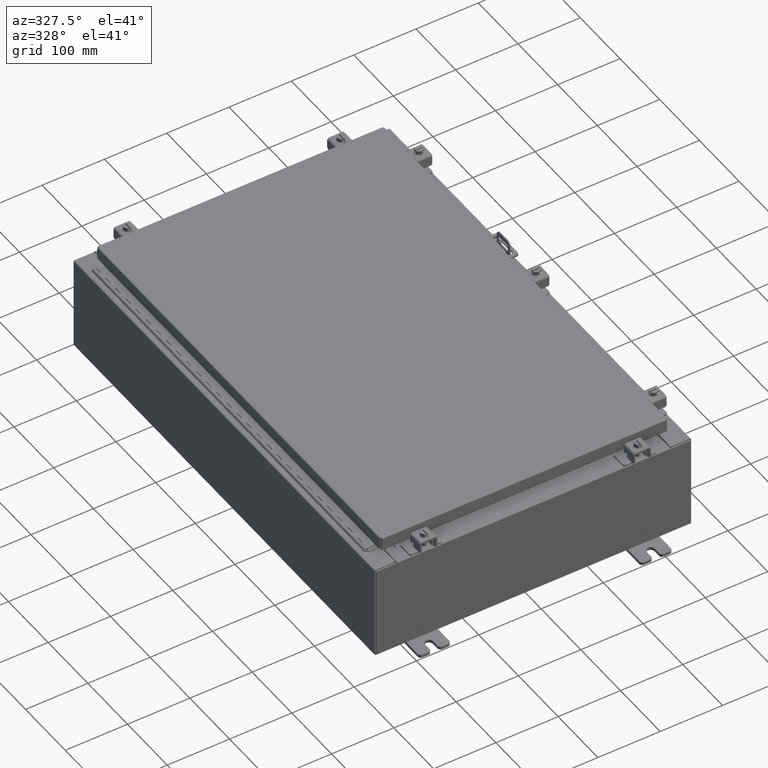
[diagram: clean part render]
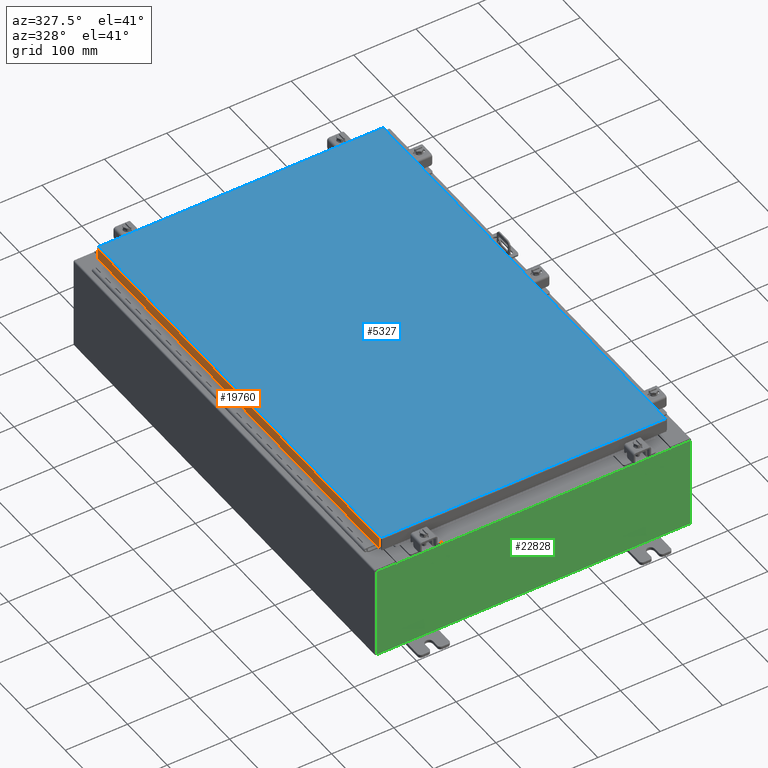
[diagram: same view with three faces highlighted in distinct colors, each labeled with its STEP entity id]
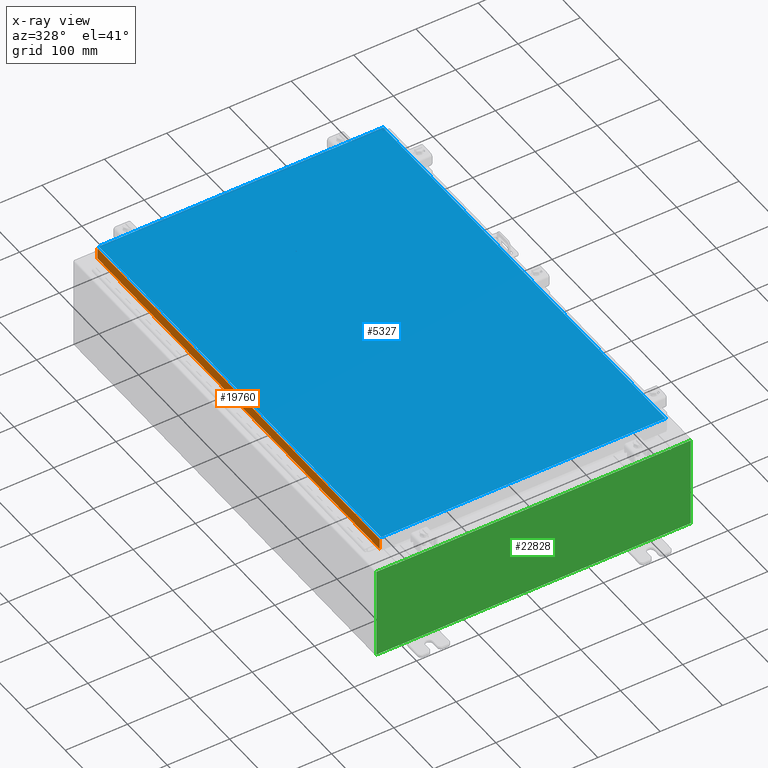
[diagram: x-ray of the same camera — body ghosted, the three highlighted faces saturated]
A machine part, auxiliary view with three faces highlighted in distinct colors.
The next image is the same camera in x-ray (body ghosted, the three faces saturated) — at least one of them is partly hidden behind the body in this view.
Their STEP definitions:

[orange] entity #19760 — the highlighted planar face has unit normal (1, 0, -0).
#527 = ORIENTED_EDGE ( 'NONE', *, *, #19827, .F. ) ;
#1669 = CARTESIAN_POINT ( 'NONE',  ( -9.077999999999997600, -14.09399999999999600, -0.08770000000000004200 ) ) ;
#2088 = CARTESIAN_POINT ( 'NONE',  ( -9.077999999999997600, -14.00515786437626500, -0.07469999999999976700 ) ) ;
#2225 = CARTESIAN_POINT ( 'NONE',  ( -9.077999999999999400, -14.00515786437626200, -0.7949999999999996000 ) ) ;
#2512 = ORIENTED_EDGE ( 'NONE', *, *, #2642, .F. ) ;
#2585 = EDGE_CURVE ( 'NONE', #25218, #14120, #32703, .T. ) ;
#2642 = EDGE_CURVE ( 'NONE', #13750, #14120, #8410, .T. ) ;
#3983 = DIRECTION ( 'NONE',  ( 1.000000000000000000, 3.675660434206576600E-031, -3.034122441942816500E-015 ) ) ;
#4586 = LINE ( 'NONE', #2088, #34834 ) ;
#7507 = VECTOR ( 'NONE', #25178, 39.37007874015748100 ) ;
#7616 = CARTESIAN_POINT ( 'NONE',  ( -9.077999999999999400, -14.09399999999999600, -0.7949999999999997100 ) ) ;
#7773 = VERTEX_POINT ( 'NONE', #8099 ) ;
#7903 = LINE ( 'NONE', #1669, #14809 ) ;
#8099 = CARTESIAN_POINT ( 'NONE',  ( -9.077999999999997600, -14.00515786437626400, -0.08770000000000007000 ) ) ;
#8410 = LINE ( 'NONE', #7616, #7507 ) ;
#9323 = VECTOR ( 'NONE', #19186, 39.37007874015748100 ) ;
#10448 = DIRECTION ( 'NONE',  ( 3.675660434206577100E-031, -1.000000000000000000, -1.083515668565077200E-045 ) ) ;
#13750 = VERTEX_POINT ( 'NONE', #2225 ) ;
#14120 = VERTEX_POINT ( 'NONE', #36398 ) ;
#14809 = VECTOR ( 'NONE', #10448, 39.37007874015748100 ) ;
#16621 = EDGE_LOOP ( 'NONE', ( #527, #21919, #2512, #25844 ) ) ;
#17557 = FACE_OUTER_BOUND ( 'NONE', #16621, .T. ) ;
#19051 = CARTESIAN_POINT ( 'NONE',  ( -9.077999999999997600, 14.00515786437626900, 1.256020718460122500E-013 ) ) ;
#19186 = DIRECTION ( 'NONE',  ( -3.034122441942816500E-015, 6.982962677686265900E-015, -1.000000000000000000 ) ) ;
#19760 = ADVANCED_FACE ( 'NONE', ( #17557 ), #27241, .F. ) ;
#19827 = EDGE_CURVE ( 'NONE', #25218, #7773, #7903, .T. ) ;
#21533 = CARTESIAN_POINT ( 'NONE',  ( -9.077999999999997600, -3.336764542172729700E-030, 2.780457718396846400E-014 ) ) ;
#21542 = EDGE_CURVE ( 'NONE', #7773, #13750, #4586, .T. ) ;
#21919 = ORIENTED_EDGE ( 'NONE', *, *, #2585, .T. ) ;
#24473 = DIRECTION ( 'NONE',  ( -3.034122441942816500E-015, 0.0000000000000000000, -1.000000000000000000 ) ) ;
#25178 = DIRECTION ( 'NONE',  ( -4.379057701015054300E-047, 1.000000000000000000, 1.211441035930299800E-016 ) ) ;
#25218 = VERTEX_POINT ( 'NONE', #27128 ) ;
#25507 = DIRECTION ( 'NONE',  ( -3.034122441942816500E-015, 6.982962677686265900E-015, -1.000000000000000000 ) ) ;
#25844 = ORIENTED_EDGE ( 'NONE', *, *, #21542, .F. ) ;
#27128 = CARTESIAN_POINT ( 'NONE',  ( -9.077999999999997600, 14.00515786437626900, -0.08770000000000004200 ) ) ;
#27241 = PLANE ( 'NONE',  #34880 ) ;
#32703 = LINE ( 'NONE', #19051, #9323 ) ;
#34834 = VECTOR ( 'NONE', #25507, 39.37007874015748100 ) ;
#34880 = AXIS2_PLACEMENT_3D ( 'NONE', #21533, #3983, #24473 ) ;
#36398 = CARTESIAN_POINT ( 'NONE',  ( -9.077999999999999400, 14.00515786437627400, -0.7949999999999962700 ) ) ;

[blue] entity #5327 — the highlighted planar face has unit normal (0, 0, -1).
#746 = CARTESIAN_POINT ( 'NONE',  ( 0.0000000000000000000, 0.0000000000000000000, 0.0000000000000000000 ) ) ;
#872 = DIRECTION ( 'NONE',  ( 0.0000000000000000000, 0.0000000000000000000, -1.000000000000000000 ) ) ;
#1370 = VERTEX_POINT ( 'NONE', #28244 ) ;
#1829 = VERTEX_POINT ( 'NONE', #24437 ) ;
#2515 = EDGE_CURVE ( 'NONE', #1829, #4608, #20843, .T. ) ;
#4042 = VECTOR ( 'NONE', #30584, 39.37007874015748100 ) ;
#4205 = CARTESIAN_POINT ( 'NONE',  ( -8.990299999999997700, 14.00630000000000100, -2.048885995248197400E-016 ) ) ;
#4320 = VECTOR ( 'NONE', #27601, 39.37007874015748100 ) ;
#4608 = VERTEX_POINT ( 'NONE', #31509 ) ;
#5261 = EDGE_LOOP ( 'NONE', ( #23750, #16011, #24823, #6941 ) ) ;
#5327 = ADVANCED_FACE ( 'NONE', ( #27726 ), #21231, .F. ) ;
#6627 = DIRECTION ( 'NONE',  ( 0.0000000000000000000, 1.000000000000000000, 0.0000000000000000000 ) ) ;
#6941 = ORIENTED_EDGE ( 'NONE', *, *, #2515, .T. ) ;
#8367 = VECTOR ( 'NONE', #12045, 39.37007874015748100 ) ;
#9841 = CARTESIAN_POINT ( 'NONE',  ( 8.990300000000001300, 14.00629999999999800, -2.048885995248197400E-016 ) ) ;
#12045 = DIRECTION ( 'NONE',  ( 1.000000000000000000, -0.0000000000000000000, -0.0000000000000000000 ) ) ;
#15307 = AXIS2_PLACEMENT_3D ( 'NONE', #746, #872, #21348 ) ;
#15338 = CARTESIAN_POINT ( 'NONE',  ( 8.990300000000001300, -14.00629999999999800, -7.512581982576723400E-016 ) ) ;
#16011 = ORIENTED_EDGE ( 'NONE', *, *, #29845, .T. ) ;
#16190 = EDGE_CURVE ( 'NONE', #1370, #1829, #25560, .T. ) ;
#18473 = VERTEX_POINT ( 'NONE', #15338 ) ;
#20843 = LINE ( 'NONE', #4205, #4320 ) ;
#21231 = PLANE ( 'NONE',  #15307 ) ;
#21348 = DIRECTION ( 'NONE',  ( -1.000000000000000000, 0.0000000000000000000, -0.0000000000000000000 ) ) ;
#23750 = ORIENTED_EDGE ( 'NONE', *, *, #37694, .T. ) ;
#23985 = LINE ( 'NONE', #32532, #8367 ) ;
#24437 = CARTESIAN_POINT ( 'NONE',  ( -8.990299999999997700, 14.00630000000000100, -2.048885995248197400E-016 ) ) ;
#24823 = ORIENTED_EDGE ( 'NONE', *, *, #16190, .T. ) ;
#25560 = LINE ( 'NONE', #9841, #4042 ) ;
#27601 = DIRECTION ( 'NONE',  ( 0.0000000000000000000, -1.000000000000000000, 0.0000000000000000000 ) ) ;
#27726 = FACE_OUTER_BOUND ( 'NONE', #5261, .T. ) ;
#28244 = CARTESIAN_POINT ( 'NONE',  ( 8.990300000000001300, 14.00629999999999800, -2.048885995248197400E-016 ) ) ;
#28752 = VECTOR ( 'NONE', #6627, 39.37007874015748100 ) ;
#29845 = EDGE_CURVE ( 'NONE', #18473, #1370, #37513, .T. ) ;
#30584 = DIRECTION ( 'NONE',  ( -1.000000000000000000, -0.0000000000000000000, -0.0000000000000000000 ) ) ;
#31509 = CARTESIAN_POINT ( 'NONE',  ( -8.990299999999997700, -14.00629999999999800, 1.980589795406590900E-015 ) ) ;
#32532 = CARTESIAN_POINT ( 'NONE',  ( -8.990299999999996000, -14.00629999999999800, 1.963515745446189200E-015 ) ) ;
#32860 = CARTESIAN_POINT ( 'NONE',  ( 8.990300000000001300, -14.00629999999999800, -7.512581982576723400E-016 ) ) ;
#37513 = LINE ( 'NONE', #32860, #28752 ) ;
#37694 = EDGE_CURVE ( 'NONE', #4608, #18473, #23985, .T. ) ;

[green] entity #22828 — the highlighted planar face has unit normal (-0, 1, -0).
#250 = CARTESIAN_POINT ( 'NONE',  ( 9.925300000000000000, 0.0000000000000000000, 2.925300000000000500 ) ) ;
#287 = LINE ( 'NONE', #5457, #30472 ) ;
#508 = VERTEX_POINT ( 'NONE', #18535 ) ;
#758 = ORIENTED_EDGE ( 'NONE', *, *, #11810, .T. ) ;
#759 = ORIENTED_EDGE ( 'NONE', *, *, #8971, .T. ) ;
#767 = ORIENTED_EDGE ( 'NONE', *, *, #13139, .F. ) ;
#982 = VERTEX_POINT ( 'NONE', #29460 ) ;
#1611 = VECTOR ( 'NONE', #2074, 39.37007874015748100 ) ;
#2003 = CARTESIAN_POINT ( 'NONE',  ( 0.0000000000000000000, 0.0000000000000000000, 0.0000000000000000000 ) ) ;
#2074 = DIRECTION ( 'NONE',  ( 1.000000000000000000, 0.0000000000000000000, 0.0000000000000000000 ) ) ;
#2198 = ORIENTED_EDGE ( 'NONE', *, *, #13078, .F. ) ;
#2418 = CARTESIAN_POINT ( 'NONE',  ( 8.655875000000000000, 0.0000000000000000000, 2.874950000000000600 ) ) ;
#2620 = DIRECTION ( 'NONE',  ( 0.0000000000000000000, 0.0000000000000000000, 1.000000000000000000 ) ) ;
#2727 = VECTOR ( 'NONE', #2620, 39.37007874015748100 ) ;
#3067 = VERTEX_POINT ( 'NONE', #3793 ) ;
#3416 = EDGE_CURVE ( 'NONE', #28895, #508, #32936, .T. ) ;
#3793 = CARTESIAN_POINT ( 'NONE',  ( -9.925300000000000000, 0.0000000000000000000, -2.925299999999999600 ) ) ;
#4828 = CARTESIAN_POINT ( 'NONE',  ( 8.637200000000000000, 0.0000000000000000000, 2.912300000000000600 ) ) ;
#4930 = PLANE ( 'NONE',  #10031 ) ;
#5323 = DIRECTION ( 'NONE',  ( 0.0000000000000000000, 0.0000000000000000000, -1.000000000000000000 ) ) ;
#5457 = CARTESIAN_POINT ( 'NONE',  ( -8.637199999999996400, -0.0000000000000000000, 0.0000000000000000000 ) ) ;
#5923 = VERTEX_POINT ( 'NONE', #24006 ) ;
#6334 = CARTESIAN_POINT ( 'NONE',  ( -8.637199999999996400, -0.0000000000000000000, 2.874950000000000600 ) ) ;
#6376 = CARTESIAN_POINT ( 'NONE',  ( 8.674550000000001800, 0.0000000000000000000, 2.925300000000000500 ) ) ;
#7005 = LINE ( 'NONE', #31178, #13870 ) ;
#7864 = DIRECTION ( 'NONE',  ( 0.0000000000000000000, -0.0000000000000000000, -1.000000000000000000 ) ) ;
#8932 = LINE ( 'NONE', #14497, #9834 ) ;
#8971 = EDGE_CURVE ( 'NONE', #28895, #17435, #16119, .T. ) ;
#8983 = VECTOR ( 'NONE', #20738, 39.37007874015748100 ) ;
#9654 = ORIENTED_EDGE ( 'NONE', *, *, #24963, .F. ) ;
#9834 = VECTOR ( 'NONE', #32023, 39.37007874015748100 ) ;
#9990 = EDGE_LOOP ( 'NONE', ( #36661, #9654, #35636, #758, #2198, #767, #29852, #759, #18352, #25515, #16914, #19839 ) ) ;
#10031 = AXIS2_PLACEMENT_3D ( 'NONE', #2003, #16600, #7864 ) ;
#10091 = EDGE_CURVE ( 'NONE', #27007, #3067, #25939, .T. ) ;
#11167 = CIRCLE ( 'NONE', #30956, 0.01867500000000003900 ) ;
#11504 = CARTESIAN_POINT ( 'NONE',  ( -8.655874999999996400, 0.0000000000000000000, 2.874950000000000600 ) ) ;
#11627 = CARTESIAN_POINT ( 'NONE',  ( 8.674549999999813500, -0.0000000000000000000, -5.647877341832707700E-013 ) ) ;
#11810 = EDGE_CURVE ( 'NONE', #19520, #16982, #17172, .T. ) ;
#12816 = EDGE_CURVE ( 'NONE', #32040, #982, #23081, .T. ) ;
#12955 = CIRCLE ( 'NONE', #29007, 0.01867500000000003900 ) ;
#13078 = EDGE_CURVE ( 'NONE', #5923, #16982, #7005, .T. ) ;
#13139 = EDGE_CURVE ( 'NONE', #508, #5923, #12955, .T. ) ;
#13870 = VECTOR ( 'NONE', #36988, 39.37007874015748100 ) ;
#14473 = DIRECTION ( 'NONE',  ( 0.0000000000000000000, 0.0000000000000000000, -1.000000000000000000 ) ) ;
#14497 = CARTESIAN_POINT ( 'NONE',  ( -9.925300000000000000, 0.0000000000000000000, 2.925300000000000500 ) ) ;
#15288 = VECTOR ( 'NONE', #36104, 39.37007874015748100 ) ;
#15942 = FACE_OUTER_BOUND ( 'NONE', #9990, .T. ) ;
#16119 = LINE ( 'NONE', #27389, #30741 ) ;
#16600 = DIRECTION ( 'NONE',  ( 0.0000000000000000000, -1.000000000000000000, 0.0000000000000000000 ) ) ;
#16793 = LINE ( 'NONE', #250, #8983 ) ;
#16847 = VERTEX_POINT ( 'NONE', #36485 ) ;
#16914 = ORIENTED_EDGE ( 'NONE', *, *, #36440, .T. ) ;
#16980 = CARTESIAN_POINT ( 'NONE',  ( -9.925300000000000000, 0.0000000000000000000, 2.925300000000000500 ) ) ;
#16982 = VERTEX_POINT ( 'NONE', #4828 ) ;
#17162 = EDGE_CURVE ( 'NONE', #19520, #30392, #287, .T. ) ;
#17172 = LINE ( 'NONE', #28269, #1611 ) ;
#17191 = CARTESIAN_POINT ( 'NONE',  ( -8.674549999999996400, -0.0000000000000000000, 0.0000000000000000000 ) ) ;
#17435 = VERTEX_POINT ( 'NONE', #21833 ) ;
#17681 = DIRECTION ( 'NONE',  ( -1.000000000000000000, -0.0000000000000000000, -0.0000000000000000000 ) ) ;
#18308 = LINE ( 'NONE', #17191, #2727 ) ;
#18352 = ORIENTED_EDGE ( 'NONE', *, *, #23824, .T. ) ;
#18535 = CARTESIAN_POINT ( 'NONE',  ( 8.674550000000000000, 0.0000000000000000000, 2.874950000000000600 ) ) ;
#19520 = VERTEX_POINT ( 'NONE', #31612 ) ;
#19839 = ORIENTED_EDGE ( 'NONE', *, *, #12816, .T. ) ;
#20450 = DIRECTION ( 'NONE',  ( 0.0000000000000000000, 0.0000000000000000000, -1.000000000000000000 ) ) ;
#20738 = DIRECTION ( 'NONE',  ( 0.0000000000000000000, 0.0000000000000000000, -1.000000000000000000 ) ) ;
#21380 = CARTESIAN_POINT ( 'NONE',  ( -9.925300000000000000, 0.0000000000000000000, 2.925300000000000500 ) ) ;
#21833 = CARTESIAN_POINT ( 'NONE',  ( 9.925300000000000000, 0.0000000000000000000, 2.925300000000000500 ) ) ;
#22828 = ADVANCED_FACE ( 'NONE', ( #15942 ), #4930, .F. ) ;
#22889 = DIRECTION ( 'NONE',  ( -0.0000000000000000000, 1.000000000000000000, -0.0000000000000000000 ) ) ;
#23081 = LINE ( 'NONE', #21380, #15288 ) ;
#23824 = EDGE_CURVE ( 'NONE', #17435, #27007, #16793, .T. ) ;
#24006 = CARTESIAN_POINT ( 'NONE',  ( 8.637200000000000000, 0.0000000000000000000, 2.874950000000000600 ) ) ;
#24963 = EDGE_CURVE ( 'NONE', #30392, #16847, #11167, .T. ) ;
#25515 = ORIENTED_EDGE ( 'NONE', *, *, #10091, .T. ) ;
#25833 = CARTESIAN_POINT ( 'NONE',  ( 9.925300000000000000, 0.0000000000000000000, -2.925299999999999600 ) ) ;
#25939 = LINE ( 'NONE', #35246, #35607 ) ;
#26079 = VECTOR ( 'NONE', #32141, 39.37007874015748100 ) ;
#27007 = VERTEX_POINT ( 'NONE', #25833 ) ;
#27389 = CARTESIAN_POINT ( 'NONE',  ( -9.925300000000000000, 0.0000000000000000000, 2.925300000000000500 ) ) ;
#28269 = CARTESIAN_POINT ( 'NONE',  ( -8.637200000000000000, 1.024442997624098700E-016, 2.912300000000000600 ) ) ;
#28895 = VERTEX_POINT ( 'NONE', #6376 ) ;
#29007 = AXIS2_PLACEMENT_3D ( 'NONE', #2418, #22889, #5323 ) ;
#29460 = CARTESIAN_POINT ( 'NONE',  ( -8.674549999999996400, 0.0000000000000000000, 2.925300000000000500 ) ) ;
#29852 = ORIENTED_EDGE ( 'NONE', *, *, #3416, .F. ) ;
#30392 = VERTEX_POINT ( 'NONE', #6334 ) ;
#30472 = VECTOR ( 'NONE', #20450, 39.37007874015748100 ) ;
#30741 = VECTOR ( 'NONE', #33291, 39.37007874015748100 ) ;
#30956 = AXIS2_PLACEMENT_3D ( 'NONE', #11504, #32000, #14473 ) ;
#31178 = CARTESIAN_POINT ( 'NONE',  ( 8.637200000000000000, 0.0000000000000000000, 0.0000000000000000000 ) ) ;
#31612 = CARTESIAN_POINT ( 'NONE',  ( -8.637199999999996400, 1.024442997624098700E-016, 2.912300000000000600 ) ) ;
#32000 = DIRECTION ( 'NONE',  ( -0.0000000000000000000, 1.000000000000000000, -0.0000000000000000000 ) ) ;
#32023 = DIRECTION ( 'NONE',  ( -0.0000000000000000000, -0.0000000000000000000, 1.000000000000000000 ) ) ;
#32040 = VERTEX_POINT ( 'NONE', #16980 ) ;
#32141 = DIRECTION ( 'NONE',  ( -6.510859170600007400E-014, 0.0000000000000000000, -1.000000000000000000 ) ) ;
#32936 = LINE ( 'NONE', #11627, #26079 ) ;
#33291 = DIRECTION ( 'NONE',  ( 1.000000000000000000, 0.0000000000000000000, 0.0000000000000000000 ) ) ;
#34242 = EDGE_CURVE ( 'NONE', #16847, #982, #18308, .T. ) ;
#35246 = CARTESIAN_POINT ( 'NONE',  ( -9.925300000000000000, 0.0000000000000000000, -2.925299999999999600 ) ) ;
#35607 = VECTOR ( 'NONE', #17681, 39.37007874015748100 ) ;
#35636 = ORIENTED_EDGE ( 'NONE', *, *, #17162, .F. ) ;
#36104 = DIRECTION ( 'NONE',  ( 1.000000000000000000, 0.0000000000000000000, 0.0000000000000000000 ) ) ;
#36440 = EDGE_CURVE ( 'NONE', #3067, #32040, #8932, .T. ) ;
#36485 = CARTESIAN_POINT ( 'NONE',  ( -8.674549999999996400, 0.0000000000000000000, 2.874950000000000600 ) ) ;
#36661 = ORIENTED_EDGE ( 'NONE', *, *, #34242, .F. ) ;
#36988 = DIRECTION ( 'NONE',  ( 0.0000000000000000000, 0.0000000000000000000, 1.000000000000000000 ) ) ;